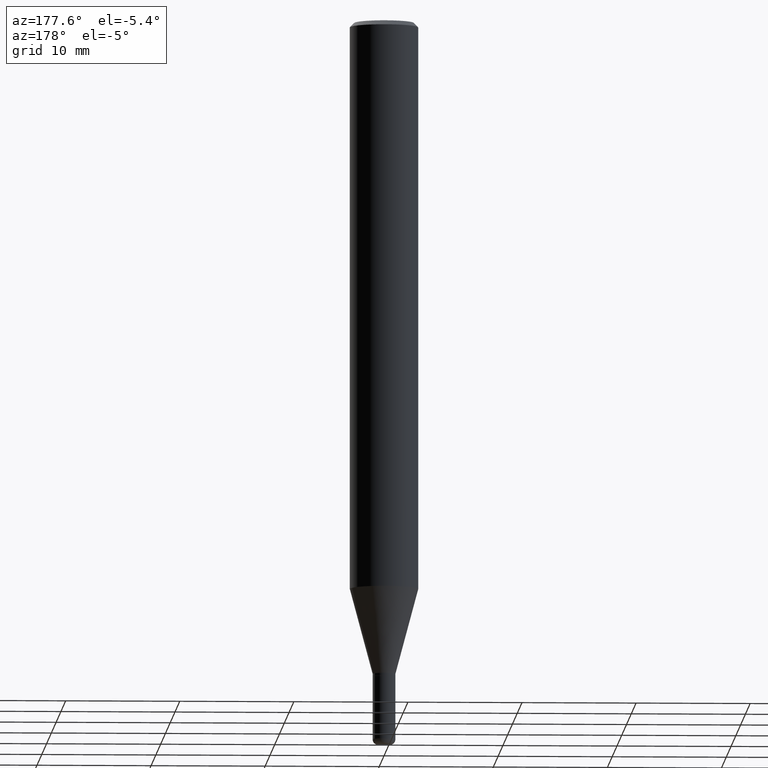
[diagram: clean part render]
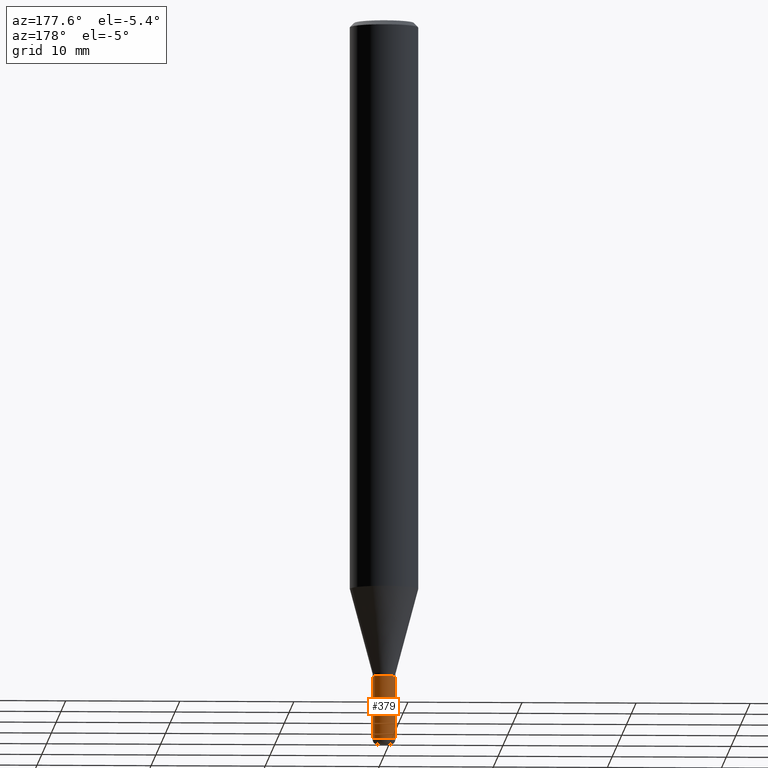
[diagram: same view with one face highlighted and labeled with its STEP entity id]
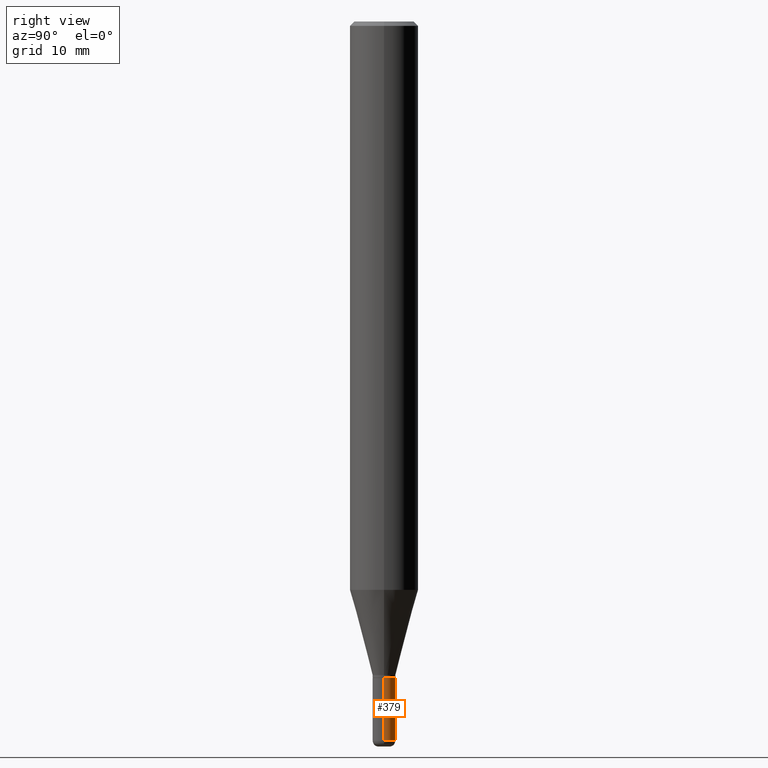
[diagram: same view with one face highlighted and labeled with its STEP entity id]
A machine part, auxiliary view. The second image highlights one B-rep face of the part: STEP entity #379.
A second angle (right view) of the same face is appended — the face is thin or edge-on in the first view.
In plain terms, the highlighted cylindrical surface (edge-blend (fillet) strip) has radius 0.9995 mm, axis along (-0, 0, 1).
Its self-contained STEP definition (entity closure, byte-faithful):
#5 = CARTESIAN_POINT ( 'NONE',  ( 6.065496279980994755E-29, -8.659921164732655335E-15, -2.480300000000000171 ) ) ;
#10 = VERTEX_POINT ( 'NONE', #276 ) ;
#18 = VECTOR ( 'NONE', #469, 39.37007874015748143 ) ;
#19 = DIRECTION ( 'NONE',  ( 1.000000000000000000, -6.982962677686269077E-15, 0.000000000000000000 ) ) ;
#49 = VECTOR ( 'NONE', #57, 39.37007874015748143 ) ;
#57 = DIRECTION ( 'NONE',  ( -2.445468806185136877E-29, 3.491481338843145188E-15, 1.000000000000000000 ) ) ;
#64 = CARTESIAN_POINT ( 'NONE',  ( 0.03935000000000016956, -8.934700746099610252E-15, -2.480300000000000171 ) ) ;
#84 = ORIENTED_EDGE ( 'NONE', *, *, #255, .F. ) ;
#85 = DIRECTION ( 'NONE',  ( -2.445468806185136597E-29, 3.491481338843145583E-15, 1.000000000000000000 ) ) ;
#122 = ORIENTED_EDGE ( 'NONE', *, *, #263, .F. ) ;
#127 = EDGE_CURVE ( 'NONE', #292, #268, #509, .T. ) ;
#178 = DIRECTION ( 'NONE',  ( 1.000000000000000000, -6.982962677686266711E-15, 4.876176775795935793E-29 ) ) ;
#187 = EDGE_CURVE ( 'NONE', #268, #10, #283, .T. ) ;
#191 = CIRCLE ( 'NONE', #475, 0.03935000000000000303 ) ;
#255 = EDGE_CURVE ( 'NONE', #292, #323, #303, .T. ) ;
#263 = EDGE_CURVE ( 'NONE', #323, #10, #191, .T. ) ;
#268 = VERTEX_POINT ( 'NONE', #336 ) ;
#276 = CARTESIAN_POINT ( 'NONE',  ( -0.03935000000000000303, -8.002369743281284246E-15, -2.263800000000000257 ) ) ;
#280 = DIRECTION ( 'NONE',  ( 1.000000000000000000, -6.982962677686265133E-15, 0.000000000000000000 ) ) ;
#283 = LINE ( 'NONE', #318, #18 ) ;
#292 = VERTEX_POINT ( 'NONE', #64 ) ;
#298 = FACE_OUTER_BOUND ( 'NONE', #364, .T. ) ;
#302 = CARTESIAN_POINT ( 'NONE',  ( 0.03935000000000000303, -8.178795036240066864E-15, -2.263800000000000257 ) ) ;
#303 = LINE ( 'NONE', #458, #49 ) ;
#318 = CARTESIAN_POINT ( 'NONE',  ( -0.03935000000000008630, 2.795985665216000363E-16, -1.935600958015309846E-30 ) ) ;
#323 = VERTEX_POINT ( 'NONE', #302 ) ;
#330 = CARTESIAN_POINT ( 'NONE',  ( 0.000000000000000000, 0.000000000000000000, 0.000000000000000000 ) ) ;
#336 = CARTESIAN_POINT ( 'NONE',  ( -0.03935000000000016956, -8.002369743281282668E-15, -2.480300000000000171 ) ) ;
#352 = ORIENTED_EDGE ( 'NONE', *, *, #127, .T. ) ;
#364 = EDGE_LOOP ( 'NONE', ( #352, #450, #122, #84 ) ) ;
#371 = DIRECTION ( 'NONE',  ( -2.445468806185136597E-29, 3.491481338843145583E-15, 1.000000000000000000 ) ) ;
#376 = CARTESIAN_POINT ( 'NONE',  ( 5.536052283441912610E-29, -7.904015454873113525E-15, -2.263800000000000257 ) ) ;
#379 = ADVANCED_FACE ( 'NONE', ( #298 ), #495, .T. ) ;
#413 = AXIS2_PLACEMENT_3D ( 'NONE', #330, #492, #178 ) ;
#450 = ORIENTED_EDGE ( 'NONE', *, *, #187, .T. ) ;
#458 = CARTESIAN_POINT ( 'NONE',  ( 0.03935000000000008630, -2.747795813669552127E-16, 1.918775561275704927E-30 ) ) ;
#461 = AXIS2_PLACEMENT_3D ( 'NONE', #5, #85, #280 ) ;
#469 = DIRECTION ( 'NONE',  ( -2.445468806185136877E-29, 3.491481338843145188E-15, 1.000000000000000000 ) ) ;
#475 = AXIS2_PLACEMENT_3D ( 'NONE', #376, #371, #19 ) ;
#492 = DIRECTION ( 'NONE',  ( -2.445468806185136597E-29, 3.491481338843145583E-15, 1.000000000000000000 ) ) ;
#495 = CYLINDRICAL_SURFACE ( 'NONE', #413, 0.03935000000000008630 ) ;
#509 = CIRCLE ( 'NONE', #461, 0.03935000000000016956 ) ;